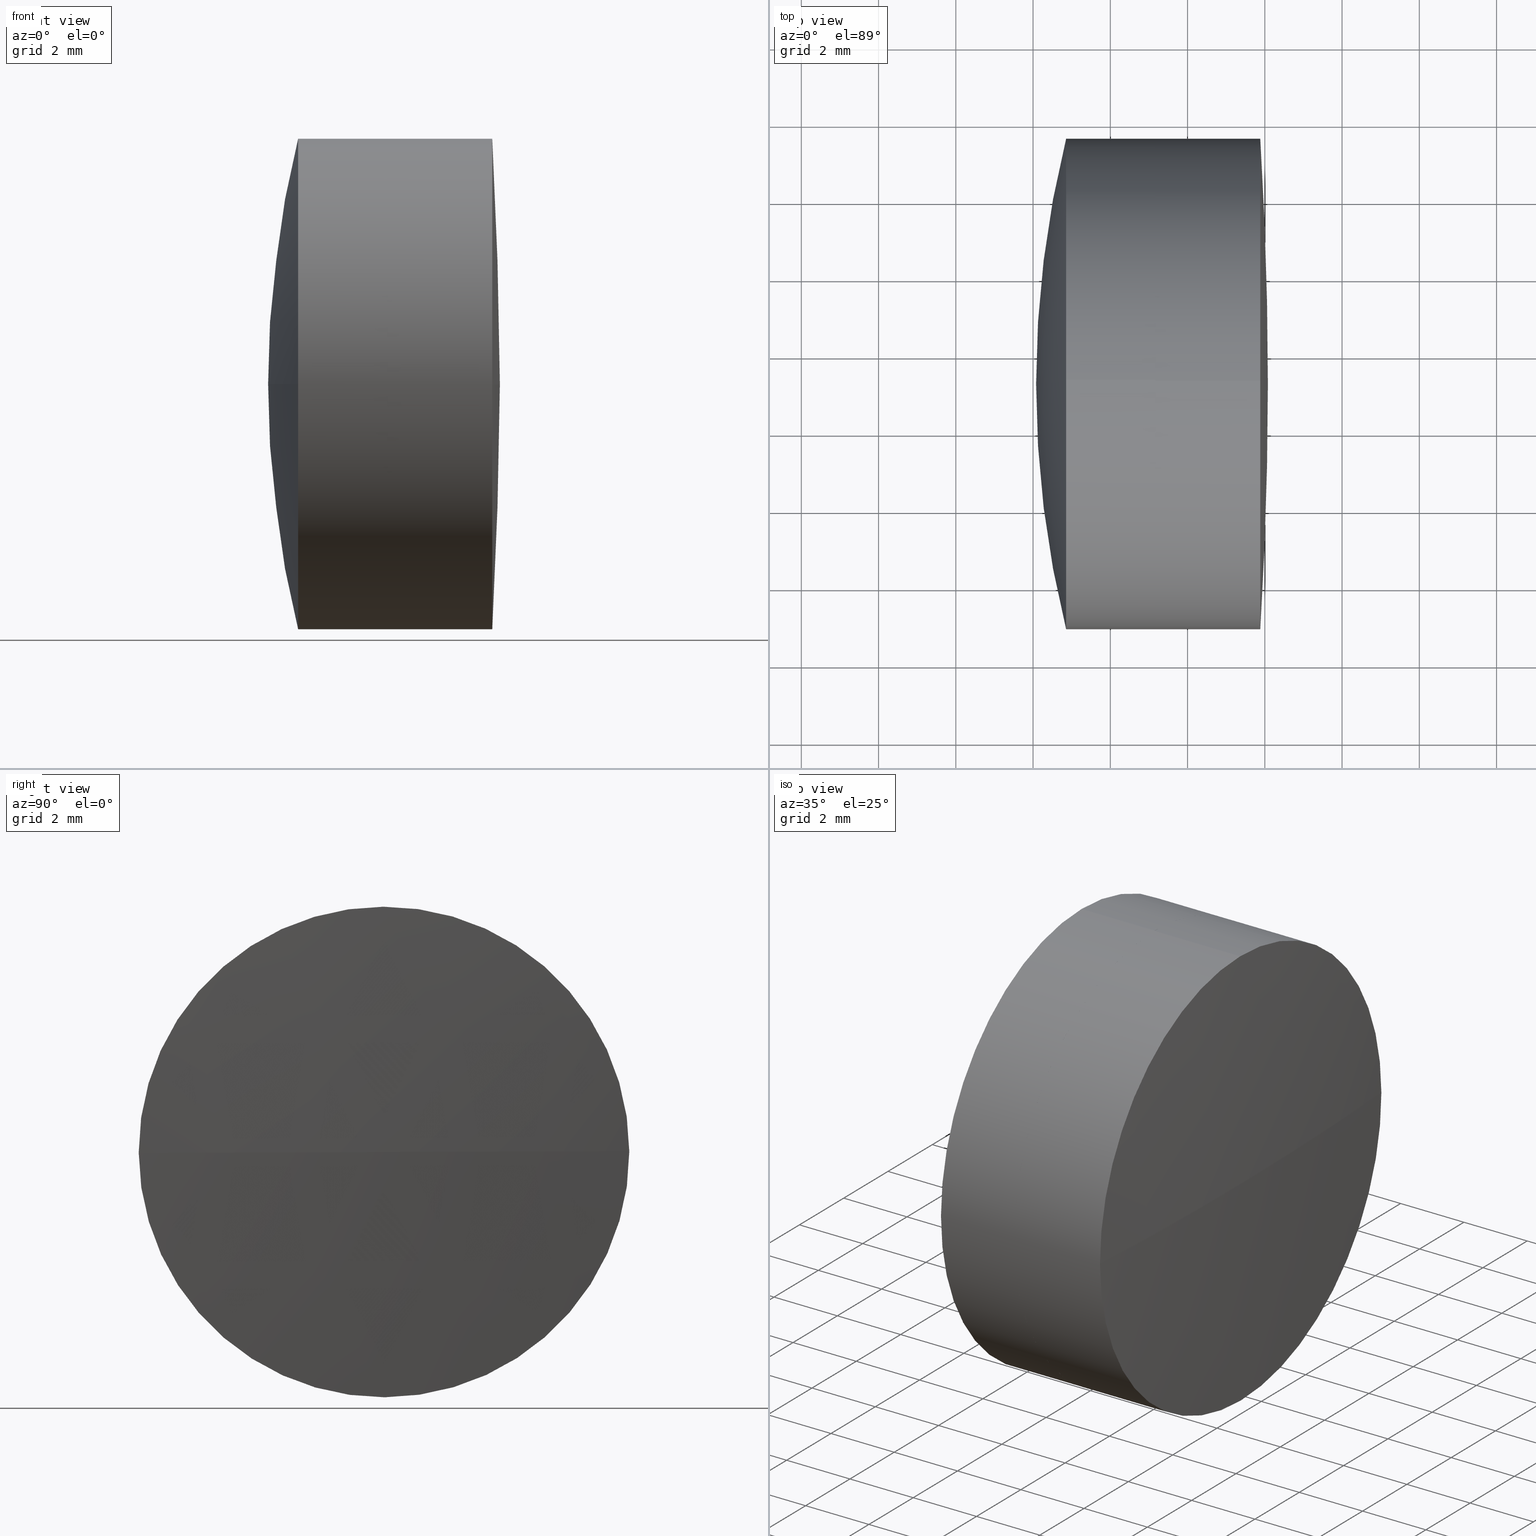
[diagram: canonical four-view strip — front | top / right | iso, engineering-drawing reading convention]
A machine part, canonical four-view strip (front | top / right | iso — engineering-drawing reading convention). The complete STEP part file that produces these views, byte-faithful:
ISO-10303-21;
HEADER;
FILE_DESCRIPTION (( 'STEP AP203' ),
    '1' );
FILE_NAME ('145273.STEP',
    '2024-05-11T03:07:16',
    ( '' ),
    ( '' ),
    'SwSTEP 2.0',
    'SolidWorks 2020',
    '' );
FILE_SCHEMA (( 'CONFIG_CONTROL_DESIGN' ));
ENDSEC;

DATA;
#1 = ADVANCED_FACE ( 'NONE', ( #428 ), #59, .F. ) ;
#2 = DIRECTION ( 'NONE',  ( -1.000000000000000000, -0.000000000000000000, -0.000000000000000000 ) ) ;
#3 = VERTEX_POINT ( 'NONE', #325 ) ;
#4 = DIRECTION ( 'NONE',  ( -1.000000000000000000, -0.000000000000000000, -0.000000000000000000 ) ) ;
#5 = ORIENTED_EDGE ( 'NONE', *, *, #82, .T. ) ;
#6 = CIRCLE ( 'NONE', #426, 6.349999999999997868 ) ;
#7 = ORIENTED_EDGE ( 'NONE', *, *, #126, .T. ) ;
#8 = EDGE_CURVE ( 'NONE', #281, #33, #6, .T. ) ;
#9 = CYLINDRICAL_SURFACE ( 'NONE', #90, 6.349999999999999645 ) ;
#10 = ORIENTED_EDGE ( 'NONE', *, *, #400, .T. ) ;
#11 = DATE_AND_TIME ( #121, #438 ) ;
#12 = EDGE_LOOP ( 'NONE', ( #299, #343, #246, #37, #244, #383 ) ) ;
#13 = AXIS2_PLACEMENT_3D ( 'NONE', #157, #184, #111 ) ;
#14 = PERSON_AND_ORGANIZATION ( #403, #101 ) ;
#15 = DIRECTION ( 'NONE',  ( -1.000000000000000000, -2.232143574251894969E-18, -0.000000000000000000 ) ) ;
#16 = CIRCLE ( 'NONE', #96, 6.349999999999997868 ) ;
#17 = PERSON_AND_ORGANIZATION ( #403, #101 ) ;
#18 = CARTESIAN_POINT ( 'NONE',  ( -42.82922239068432191, 29.23725402614866553, 0.000000000000000000 ) ) ;
#19 = AXIS2_PLACEMENT_3D ( 'NONE', #348, #277, #172 ) ;
#20 = PERSON_AND_ORGANIZATION_ROLE ( 'classification_officer' ) ;
#21 = LOCAL_TIME ( 11, 7, 16.00000000000000000, #85 ) ;
#22 = ORIENTED_EDGE ( 'NONE', *, *, #228, .F. ) ;
#23 = APPROVAL_STATUS ( 'not_yet_approved' ) ;
#24 = CARTESIAN_POINT ( 'NONE',  ( -40.11746922928519155, 29.23725402614866553, 0.000000000000000000 ) ) ;
#25 = AXIS2_PLACEMENT_3D ( 'NONE', #27, #62, #444 ) ;
#26 = EDGE_CURVE ( 'NONE', #3, #435, #308, .T. ) ;
#27 = CARTESIAN_POINT ( 'NONE',  ( -42.82922239068432191, 29.23725402614865843, 0.000000000000000000 ) ) ;
#28 = DIRECTION ( 'NONE',  ( -1.000000000000000000, -2.232143574251894969E-18, -0.000000000000000000 ) ) ;
#29 = CARTESIAN_POINT ( 'NONE',  ( -45.92046947869103235, 29.23725402614865843, -6.349999999999999645 ) ) ;
#30 = FACE_OUTER_BOUND ( 'NONE', #358, .T. ) ;
#31 = DIRECTION ( 'NONE',  ( -1.000000000000000000, -2.232143574251894969E-18, -0.000000000000000000 ) ) ;
#32 = CARTESIAN_POINT ( 'NONE',  ( -42.82922239068432191, 29.23725402614865843, 6.349999999999999645 ) ) ;
#33 = VERTEX_POINT ( 'NONE', #264 ) ;
#34 = EDGE_CURVE ( 'NONE', #156, #33, #159, .T. ) ;
#35 = AXIS2_PLACEMENT_3D ( 'NONE', #18, #295, #432 ) ;
#36 = FACE_OUTER_BOUND ( 'NONE', #12, .T. ) ;
#37 = ORIENTED_EDGE ( 'NONE', *, *, #147, .F. ) ;
#38 = DIRECTION ( 'NONE',  ( 0.000000000000000000, 0.9999928825215749217, 0.003772917464198912579 ) ) ;
#39 = ORIENTED_EDGE ( 'NONE', *, *, #26, .F. ) ;
#40 = APPROVAL_PERSON_ORGANIZATION ( #360, #440, #56 ) ;
#41 = EDGE_CURVE ( 'NONE', #292, #42, #171, .T. ) ;
#42 = VERTEX_POINT ( 'NONE', #152 ) ;
#43 = SPHERICAL_SURFACE ( 'NONE', #253, 22.64000000000000057 ) ;
#44 = AXIS2_PLACEMENT_3D ( 'NONE', #231, #267, #64 ) ;
#45 = EDGE_LOOP ( 'NONE', ( #22, #212, #181, #143 ) ) ;
#46 = MECHANICAL_CONTEXT ( 'NONE', #293, 'mechanical' ) ;
#47 = ORIENTED_EDGE ( 'NONE', *, *, #367, .F. ) ;
#48 = LOCAL_TIME ( 11, 7, 16.00000000000000000, #49 ) ;
#49 = COORDINATED_UNIVERSAL_TIME_OFFSET ( 8, 0, .AHEAD. ) ;
#50 = FACE_OUTER_BOUND ( 'NONE', #74, .T. ) ;
#51 = EDGE_CURVE ( 'NONE', #435, #176, #350, .T. ) ;
#52 = PERSON_AND_ORGANIZATION ( #403, #101 ) ;
#53 = ORIENTED_EDGE ( 'NONE', *, *, #8, .F. ) ;
#54 = PERSON_AND_ORGANIZATION ( #403, #101 ) ;
#55 = CIRCLE ( 'NONE', #146, 6.349999999999999645 ) ;
#56 = APPROVAL_ROLE ( '' ) ;
#57 = DIRECTION ( 'NONE',  ( 0.000000000000000000, -0.003772917464198976330, 0.9999928825215749217 ) ) ;
#58 = EDGE_CURVE ( 'NONE', #33, #347, #262, .T. ) ;
#59 = SPHERICAL_SURFACE ( 'NONE', #365, 22.64000000000000057 ) ;
#60 = AXIS2_PLACEMENT_3D ( 'NONE', #266, #91, #226 ) ;
#61 = CARTESIAN_POINT ( 'NONE',  ( -39.92046947869101814, 29.23725402614866908, 2.366615641800109374E-17 ) ) ;
#62 = DIRECTION ( 'NONE',  ( -1.000000000000000000, -0.000000000000000000, -0.000000000000000000 ) ) ;
#63 = LOCAL_TIME ( 11, 7, 16.00000000000000000, #191 ) ;
#64 = DIRECTION ( 'NONE',  ( 0.000000000000000000, 0.9999928825215749217, 0.003772917464198912579 ) ) ;
#65 = AXIS2_PLACEMENT_3D ( 'NONE', #201, #437, #338 ) ;
#66 = DIRECTION ( 'NONE',  ( 0.000000000000000000, 1.000000000000000000, 0.000000000000000000 ) ) ;
#67 = DIRECTION ( 'NONE',  ( -1.000000000000000000, -0.000000000000000000, -0.000000000000000000 ) ) ;
#68 = EDGE_CURVE ( 'NONE', #386, #209, #236, .T. ) ;
#69 = DIRECTION ( 'NONE',  ( 0.000000000000000000, 0.000000000000000000, 1.000000000000000000 ) ) ;
#70 = AXIS2_PLACEMENT_3D ( 'NONE', #399, #368, #168 ) ;
#71 = CARTESIAN_POINT ( 'NONE',  ( -42.82922239068432191, 35.58720883016066239, 0.02395802589766309401 ) ) ;
#72 = EDGE_CURVE ( 'NONE', #170, #119, #230, .T. ) ;
#73 = SPHERICAL_SURFACE ( 'NONE', #405, 26.33999999999976183 ) ;
#74 = EDGE_LOOP ( 'NONE', ( #375, #278, #5, #287 ) ) ;
#75 = CARTESIAN_POINT ( 'NONE',  ( -19.58046947869131316, 29.23725402614865843, 0.000000000000000000 ) ) ;
#76 = ORIENTED_EDGE ( 'NONE', *, *, #436, .T. ) ;
#77 = SPHERICAL_SURFACE ( 'NONE', #78, 22.64000000000000057 ) ;
#78 = AXIS2_PLACEMENT_3D ( 'NONE', #135, #312, #208 ) ;
#79 = ORIENTED_EDGE ( 'NONE', *, *, #72, .F. ) ;
#80 = CALENDAR_DATE ( 2024, 11, 5 ) ;
#81 = LINE ( 'NONE', #237, #393 ) ;
#82 = EDGE_CURVE ( 'NONE', #136, #261, #177, .T. ) ;
#83 = DESIGN_CONTEXT ( 'detailed design', #315, 'design' ) ;
#84 = PRODUCT_RELATED_PRODUCT_CATEGORY ( 'detail', '', ( #221 ) ) ;
#85 = COORDINATED_UNIVERSAL_TIME_OFFSET ( 8, 0, .AHEAD. ) ;
#86 = DIRECTION ( 'NONE',  ( 0.000000000000000000, 0.9999928825215749217, 0.003772917464198913013 ) ) ;
#87 = ORIENTED_EDGE ( 'NONE', *, *, #313, .T. ) ;
#88 = ADVANCED_FACE ( 'NONE', ( #50 ), #150, .F. ) ;
#89 = DIRECTION ( 'NONE',  ( 0.000000000000000000, -0.9999928825215750328, -0.003772917464198913447 ) ) ;
#90 = AXIS2_PLACEMENT_3D ( 'NONE', #416, #139, #384 ) ;
#91 = DIRECTION ( 'NONE',  ( -1.000000000000000000, -0.000000000000000000, -0.000000000000000000 ) ) ;
#92 = AXIS2_PLACEMENT_3D ( 'NONE', #361, #188, #356 ) ;
#93 = DIRECTION ( 'NONE',  ( 0.000000000000000000, -0.9999928825215750328, -0.003772917464198914314 ) ) ;
#94 = CARTESIAN_POINT ( 'NONE',  ( -40.11746922928519155, 29.21329600025099893, 6.349954804012000409 ) ) ;
#95 = CARTESIAN_POINT ( 'NONE',  ( -64.56046947869103292, 29.23725402614866553, 0.000000000000000000 ) ) ;
#96 = AXIS2_PLACEMENT_3D ( 'NONE', #272, #402, #305 ) ;
#97 = CC_DESIGN_PERSON_AND_ORGANIZATION_ASSIGNMENT ( #180, #220, ( #154 ) ) ;
#98 = SPHERICAL_SURFACE ( 'NONE', #377, 26.33999999999976183 ) ;
#99 = CARTESIAN_POINT ( 'NONE',  ( -42.82922239068432191, 29.23725402614865843, 0.000000000000000000 ) ) ;
#100 = EDGE_LOOP ( 'NONE', ( #352, #390, #110, #173 ) ) ;
#101 = ORGANIZATION ( 'δָ��', 'δָ��', '' ) ;
#102 = CARTESIAN_POINT ( 'NONE',  ( -64.56046947869103292, 29.23725402614865843, 0.000000000000000000 ) ) ;
#103 = ORIENTED_EDGE ( 'NONE', *, *, #265, .T. ) ;
#104 = SPHERICAL_SURFACE ( 'NONE', #381, 102.4399999999999977 ) ;
#105 = ORIENTED_EDGE ( 'NONE', *, *, #8, .T. ) ;
#106 = DIRECTION ( 'NONE',  ( -8.421693473894630932E-21, 0.003772917464199035745, -0.9999928825215750328 ) ) ;
#107 = ORIENTED_EDGE ( 'NONE', *, *, #34, .F. ) ;
#108 = CIRCLE ( 'NONE', #167, 26.33999999999976183 ) ;
#109 = DIRECTION ( 'NONE',  ( 0.000000000000000000, 0.000000000000000000, 1.000000000000000000 ) ) ;
#110 = ORIENTED_EDGE ( 'NONE', *, *, #41, .T. ) ;
#111 = DIRECTION ( 'NONE',  ( 0.000000000000000000, -0.003772917464198976330, 0.9999928825215749217 ) ) ;
#112 = EDGE_CURVE ( 'NONE', #261, #292, #185, .T. ) ;
#113 = ORIENTED_EDGE ( 'NONE', *, *, #58, .F. ) ;
#114 = ORIENTED_EDGE ( 'NONE', *, *, #215, .F. ) ;
#115 = APPROVAL_PERSON_ORGANIZATION ( #52, #282, #396 ) ;
#116 = MANIFOLD_SOLID_BREP ( '145273b-1-solid1', #273 ) ;
#117 = VERTEX_POINT ( 'NONE', #439 ) ;
#118 = ADVANCED_FACE ( 'NONE', ( #369 ), #366, .T. ) ;
#119 = VERTEX_POINT ( 'NONE', #130 ) ;
#120 = CIRCLE ( 'NONE', #370, 6.349999999999999645 ) ;
#121 = CALENDAR_DATE ( 2024, 11, 5 ) ;
#122 = ORIENTED_EDGE ( 'NONE', *, *, #242, .T. ) ;
#123 = DATE_AND_TIME ( #163, #63 ) ;
#124 = CARTESIAN_POINT ( 'NONE',  ( -41.92046947869102524, 29.23725402614866553, 5.230396147047489100E-18 ) ) ;
#125 = DIRECTION ( 'NONE',  ( -0.000000000000000000, 0.000000000000000000, -1.000000000000000000 ) ) ;
#126 = EDGE_CURVE ( 'NONE', #423, #176, #164, .T. ) ;
#127 = AXIS2_PLACEMENT_3D ( 'NONE', #158, #288, #425 ) ;
#128 = DIRECTION ( 'NONE',  ( 0.000000000000000000, 1.224646799147353207E-16, -1.000000000000000000 ) ) ;
#129 = CIRCLE ( 'NONE', #249, 102.4400000000000261 ) ;
#130 = CARTESIAN_POINT ( 'NONE',  ( -42.82922239068432191, 22.88725402614865700, -7.776507174585690191E-16 ) ) ;
#131 = CC_DESIGN_DATE_AND_TIME_ASSIGNMENT ( #182, #189, ( #137 ) ) ;
#132 = CARTESIAN_POINT ( 'NONE',  ( -42.82922239068432191, 35.58725402614864919, 0.000000000000000000 ) ) ;
#133 = CIRCLE ( 'NONE', #336, 26.33999999999976538 ) ;
#134 = CARTESIAN_POINT ( 'NONE',  ( -40.11746922928519155, 29.26121205204632858, -6.349954804012000409 ) ) ;
#135 = CARTESIAN_POINT ( 'NONE',  ( -64.56046947869103292, 29.23725402614865843, 0.000000000000000000 ) ) ;
#136 = VERTEX_POINT ( 'NONE', #271 ) ;
#137 = SECURITY_CLASSIFICATION ( '', '', #354 ) ;
#138 = ADVANCED_BREP_SHAPE_REPRESENTATION ( '145273', ( #280, #116, #233 ), #429 ) ;
#139 = DIRECTION ( 'NONE',  ( -1.000000000000000000, -0.000000000000000000, -0.000000000000000000 ) ) ;
#140 = ORIENTED_EDGE ( 'NONE', *, *, #72, .T. ) ;
#141 = CIRCLE ( 'NONE', #65, 22.64000000000000057 ) ;
#142 = CARTESIAN_POINT ( 'NONE',  ( -142.3604694786910159, 29.23725402614866553, 0.000000000000000000 ) ) ;
#143 = ORIENTED_EDGE ( 'NONE', *, *, #265, .F. ) ;
#144 = FACE_OUTER_BOUND ( 'NONE', #205, .T. ) ;
#145 = EDGE_LOOP ( 'NONE', ( #107, #314, #317, #113 ) ) ;
#146 = AXIS2_PLACEMENT_3D ( 'NONE', #99, #2, #413 ) ;
#147 = EDGE_CURVE ( 'NONE', #176, #117, #193, .T. ) ;
#148 = DIRECTION ( 'NONE',  ( -1.000000000000000000, -0.000000000000000000, -0.000000000000000000 ) ) ;
#149 = VECTOR ( 'NONE', #333, 1000.000000000000000 ) ;
#150 = SPHERICAL_SURFACE ( 'NONE', #200, 22.64000000000000057 ) ;
#151 = APPLICATION_PROTOCOL_DEFINITION ( 'international standard', 'config_control_design', 1994, #315 ) ;
#152 = CARTESIAN_POINT ( 'NONE',  ( -42.82922239068432191, 29.26121205204632858, -6.349954804012000409 ) ) ;
#153 = EDGE_CURVE ( 'NONE', #42, #136, #16, .T. ) ;
#154 = PRODUCT_DEFINITION_FORMATION_WITH_SPECIFIED_SOURCE ( '�κ�', '', #221, .NOT_KNOWN. ) ;
#155 = CALENDAR_DATE ( 2024, 11, 5 ) ;
#156 = VERTEX_POINT ( 'NONE', #61 ) ;
#157 = CARTESIAN_POINT ( 'NONE',  ( -40.11746922928519155, 29.23725402614866553, 0.000000000000000000 ) ) ;
#158 = CARTESIAN_POINT ( 'NONE',  ( -64.56046947869103292, 29.23725402614865843, 0.000000000000000000 ) ) ;
#159 = CIRCLE ( 'NONE', #401, 102.4399999999999977 ) ;
#160 = CARTESIAN_POINT ( 'NONE',  ( -19.58046947869131316, 29.23725402614865843, 0.000000000000000000 ) ) ;
#161 = CC_DESIGN_APPROVAL ( #440, ( #247 ) ) ;
#162 = EDGE_CURVE ( 'NONE', #222, #292, #269, .T. ) ;
#163 = CALENDAR_DATE ( 2024, 11, 5 ) ;
#164 = LINE ( 'NONE', #304, #149 ) ;
#165 = CARTESIAN_POINT ( 'NONE',  ( -45.14358939782461988, 29.23725402614865843, 6.349999999999999645 ) ) ;
#166 = CC_DESIGN_PERSON_AND_ORGANIZATION_ASSIGNMENT ( #17, #351, ( #154 ) ) ;
#167 = AXIS2_PLACEMENT_3D ( 'NONE', #75, #310, #214 ) ;
#168 = DIRECTION ( 'NONE',  ( 0.000000000000000000, 0.000000000000000000, 1.000000000000000000 ) ) ;
#169 = CYLINDRICAL_SURFACE ( 'NONE', #19, 6.349999999999997868 ) ;
#170 = VERTEX_POINT ( 'NONE', #199 ) ;
#171 = CIRCLE ( 'NONE', #35, 6.349999999999997868 ) ;
#172 = DIRECTION ( 'NONE',  ( 0.000000000000000000, -0.003772917464198976330, 0.9999928825215749217 ) ) ;
#173 = ORIENTED_EDGE ( 'NONE', *, *, #153, .T. ) ;
#174 = DIRECTION ( 'NONE',  ( 0.000000000000000000, -0.003772917464198976330, 0.9999928825215749217 ) ) ;
#175 = LINE ( 'NONE', #283, #420 ) ;
#176 = VERTEX_POINT ( 'NONE', #165 ) ;
#177 = CIRCLE ( 'NONE', #342, 6.349999999999997868 ) ;
#178 = ORIENTED_EDGE ( 'NONE', *, *, #385, .F. ) ;
#179 = CC_DESIGN_PERSON_AND_ORGANIZATION_ASSIGNMENT ( #54, #187, ( #247 ) ) ;
#180 = PERSON_AND_ORGANIZATION ( #403, #101 ) ;
#181 = ORIENTED_EDGE ( 'NONE', *, *, #194, .F. ) ;
#182 = DATE_AND_TIME ( #155, #48 ) ;
#183 = UNCERTAINTY_MEASURE_WITH_UNIT (LENGTH_MEASURE( 1.000000000000000082E-05 ), #434, 'distance_accuracy_value', 'NONE');
#184 = DIRECTION ( 'NONE',  ( -1.000000000000000000, -2.232143574251894969E-18, -0.000000000000000000 ) ) ;
#185 = CIRCLE ( 'NONE', #297, 6.349999999999997868 ) ;
#186 = ORIENTED_EDGE ( 'NONE', *, *, #274, .F. ) ;
#187 = PERSON_AND_ORGANIZATION_ROLE ( 'creator' ) ;
#188 = DIRECTION ( 'NONE',  ( -1.000000000000000000, -0.000000000000000000, -0.000000000000000000 ) ) ;
#189 = DATE_TIME_ROLE ( 'classification_date' ) ;
#190 = EDGE_LOOP ( 'NONE', ( #87, #250, #216, #319 ) ) ;
#191 = COORDINATED_UNIVERSAL_TIME_OFFSET ( 8, 0, .AHEAD. ) ;
#192 = DIRECTION ( 'NONE',  ( 0.000000000000000000, -0.003772917464198976330, 0.9999928825215749217 ) ) ;
#193 = CIRCLE ( 'NONE', #70, 6.349999999999999645 ) ;
#194 = EDGE_CURVE ( 'NONE', #423, #209, #323, .T. ) ;
#195 = CARTESIAN_POINT ( 'NONE',  ( -64.56046947869103292, 29.23725402614866553, 0.000000000000000000 ) ) ;
#196 = APPROVAL_DATE_TIME ( #123, #421 ) ;
#197 = DIRECTION ( 'NONE',  ( 0.000000000000000000, -0.003772917464198976330, 0.9999928825215749217 ) ) ;
#198 = CC_DESIGN_PERSON_AND_ORGANIZATION_ASSIGNMENT ( #14, #362, ( #221 ) ) ;
#199 = CARTESIAN_POINT ( 'NONE',  ( -42.82922239068432191, 29.23725402614865843, -6.349999999999999645 ) ) ;
#200 = AXIS2_PLACEMENT_3D ( 'NONE', #95, #203, #235 ) ;
#201 = CARTESIAN_POINT ( 'NONE',  ( -64.56046947869103292, 29.23725402614865843, 0.000000000000000000 ) ) ;
#202 = AXIS2_PLACEMENT_3D ( 'NONE', #210, #344, #174 ) ;
#203 = DIRECTION ( 'NONE',  ( -8.421693473894358594E-21, 0.003772917464198913013, -0.9999928825215749217 ) ) ;
#204 = DIRECTION ( 'NONE',  ( -8.421693473894357089E-21, 0.003772917464198912579, -0.9999928825215749217 ) ) ;
#205 = EDGE_LOOP ( 'NONE', ( #186, #140, #103, #7, #378, #39 ) ) ;
#206 = AXIS2_PLACEMENT_3D ( 'NONE', #225, #363, #57 ) ;
#207 = ADVANCED_FACE ( 'NONE', ( #337 ), #98, .T. ) ;
#208 = DIRECTION ( 'NONE',  ( 0.000000000000000000, 1.000000000000000000, 0.000000000000000000 ) ) ;
#209 = VERTEX_POINT ( 'NONE', #132 ) ;
#210 = CARTESIAN_POINT ( 'NONE',  ( -40.11746922928519155, 29.23725402614866553, 0.000000000000000000 ) ) ;
#211 = CIRCLE ( 'NONE', #443, 22.63999999999999702 ) ;
#212 = ORIENTED_EDGE ( 'NONE', *, *, #68, .T. ) ;
#213 = CC_DESIGN_SECURITY_CLASSIFICATION ( #137, ( #154 ) ) ;
#214 = DIRECTION ( 'NONE',  ( 1.000000000000000000, 0.000000000000000000, 0.000000000000000000 ) ) ;
#215 = EDGE_CURVE ( 'NONE', #435, #419, #133, .T. ) ;
#216 = ORIENTED_EDGE ( 'NONE', *, *, #215, .T. ) ;
#217 = AXIS2_PLACEMENT_3D ( 'NONE', #195, #268, #93 ) ;
#218 = APPLICATION_PROTOCOL_DEFINITION ( 'international standard', 'config_control_design', 1994, #293 ) ;
#219 = ORIENTED_EDGE ( 'NONE', *, *, #68, .F. ) ;
#220 = PERSON_AND_ORGANIZATION_ROLE ( 'design_supplier' ) ;
#221 = PRODUCT ( '145273', '145273', '', ( #46 ) ) ;
#222 = VERTEX_POINT ( 'NONE', #124 ) ;
#223 = DATE_AND_TIME ( #324, #21 ) ;
#224 = ORIENTED_EDGE ( 'NONE', *, *, #34, .T. ) ;
#225 = CARTESIAN_POINT ( 'NONE',  ( -40.11746922928519155, 29.23725402614866553, 0.000000000000000000 ) ) ;
#226 = DIRECTION ( 'NONE',  ( 0.000000000000000000, 0.000000000000000000, 1.000000000000000000 ) ) ;
#227 = CARTESIAN_POINT ( 'NONE',  ( -142.3604694786910159, 29.23725402614866553, 0.000000000000000000 ) ) ;
#228 = EDGE_CURVE ( 'NONE', #386, #119, #141, .T. ) ;
#229 = FACE_OUTER_BOUND ( 'NONE', #349, .T. ) ;
#230 = CIRCLE ( 'NONE', #92, 6.349999999999999645 ) ;
#231 = CARTESIAN_POINT ( 'NONE',  ( -142.3604694786910159, 29.23725402614866553, 0.000000000000000000 ) ) ;
#232 = ADVANCED_FACE ( 'NONE', ( #229 ), #404, .T. ) ;
#233 = AXIS2_PLACEMENT_3D ( 'NONE', #256, #254, #263 ) ;
#234 = CARTESIAN_POINT ( 'NONE',  ( -40.11746922928519865, 22.88729922213665091, -0.02395802589766392668 ) ) ;
#235 = DIRECTION ( 'NONE',  ( 0.000000000000000000, 0.9999928825215749217, 0.003772917464198913013 ) ) ;
#236 = CIRCLE ( 'NONE', #127, 22.64000000000000057 ) ;
#237 = CARTESIAN_POINT ( 'NONE',  ( -41.92046947869102524, 29.21329600025099893, 6.349954804011998633 ) ) ;
#238 = CIRCLE ( 'NONE', #13, 6.349999999999997868 ) ;
#239 = LOCAL_TIME ( 11, 7, 16.00000000000000000, #394 ) ;
#240 = FACE_OUTER_BOUND ( 'NONE', #331, .T. ) ;
#241 = EDGE_LOOP ( 'NONE', ( #447, #252, #320, #311, #380, #105 ) ) ;
#242 = EDGE_CURVE ( 'NONE', #281, #261, #81, .T. ) ;
#243 = DIRECTION ( 'NONE',  ( 0.000000000000000000, 1.000000000000000000, 0.000000000000000000 ) ) ;
#244 = ORIENTED_EDGE ( 'NONE', *, *, #126, .F. ) ;
#245 = DIRECTION ( 'NONE',  ( -0.000000000000000000, 0.000000000000000000, -1.000000000000000000 ) ) ;
#246 = ORIENTED_EDGE ( 'NONE', *, *, #313, .F. ) ;
#247 = PRODUCT_DEFINITION ( 'δ֪', '', #154, #83 ) ;
#248 = CARTESIAN_POINT ( 'NONE',  ( -41.92046947869102524, 29.23725402614865843, 0.000000000000000000 ) ) ;
#249 = AXIS2_PLACEMENT_3D ( 'NONE', #279, #106, #307 ) ;
#250 = ORIENTED_EDGE ( 'NONE', *, *, #26, .T. ) ;
#251 = DIRECTION ( 'NONE',  ( 0.000000000000000000, 0.9999928825215749217, 0.003772917464199036178 ) ) ;
#252 = ORIENTED_EDGE ( 'NONE', *, *, #371, .T. ) ;
#253 = AXIS2_PLACEMENT_3D ( 'NONE', #102, #245, #411 ) ;
#254 = DIRECTION ( 'NONE',  ( 0.000000000000000000, 0.000000000000000000, 1.000000000000000000 ) ) ;
#255 = CARTESIAN_POINT ( 'NONE',  ( -42.82922239068432191, 29.23725402614866553, 0.000000000000000000 ) ) ;
#256 = CARTESIAN_POINT ( 'NONE',  ( 0.000000000000000000, 0.000000000000000000, 0.000000000000000000 ) ) ;
#257 = AXIS2_PLACEMENT_3D ( 'NONE', #422, #4, #109 ) ;
#258 = PRODUCT_DEFINITION_SHAPE ( 'NONE', 'NONE',  #247 ) ;
#259 = ORIENTED_EDGE ( 'NONE', *, *, #371, .F. ) ;
#260 =( NAMED_UNIT ( * ) SI_UNIT ( $, .STERADIAN. ) SOLID_ANGLE_UNIT ( ) );
#261 = VERTEX_POINT ( 'NONE', #373 ) ;
#262 = CIRCLE ( 'NONE', #206, 6.349999999999997868 ) ;
#263 = DIRECTION ( 'NONE',  ( 1.000000000000000000, 0.000000000000000000, 0.000000000000000000 ) ) ;
#264 = CARTESIAN_POINT ( 'NONE',  ( -40.11746922928519865, 35.58720883016067660, 0.02395802589766314605 ) ) ;
#265 = EDGE_CURVE ( 'NONE', #119, #423, #120, .T. ) ;
#266 = CARTESIAN_POINT ( 'NONE',  ( -45.14358939782461988, 29.23725402614865843, 0.000000000000000000 ) ) ;
#267 = DIRECTION ( 'NONE',  ( -8.421693473894357089E-21, 0.003772917464198912579, -0.9999928825215749217 ) ) ;
#268 = DIRECTION ( 'NONE',  ( 8.421693473894358594E-21, -0.003772917464198913447, 0.9999928825215750328 ) ) ;
#269 = CIRCLE ( 'NONE', #217, 22.63999999999999702 ) ;
#270 = CARTESIAN_POINT ( 'NONE',  ( -41.92046947869102524, 29.23725402614866553, 0.000000000000000000 ) ) ;
#271 = CARTESIAN_POINT ( 'NONE',  ( -42.82922239068432191, 22.88729922213666157, -0.02395802589766386423 ) ) ;
#272 = CARTESIAN_POINT ( 'NONE',  ( -42.82922239068432191, 29.23725402614866553, 0.000000000000000000 ) ) ;
#273 = CLOSED_SHELL ( 'NONE', ( #321, #353, #88, #1, #118, #232 ) ) ;
#274 = EDGE_CURVE ( 'NONE', #170, #3, #302, .T. ) ;
#275 = DIRECTION ( 'NONE',  ( -1.000000000000000000, -0.000000000000000000, -0.000000000000000000 ) ) ;
#276 = ORIENTED_EDGE ( 'NONE', *, *, #147, .T. ) ;
#277 = DIRECTION ( 'NONE',  ( -1.000000000000000000, -2.232143574251894969E-18, -0.000000000000000000 ) ) ;
#278 = ORIENTED_EDGE ( 'NONE', *, *, #339, .T. ) ;
#279 = CARTESIAN_POINT ( 'NONE',  ( -142.3604694786910159, 29.23725402614866553, 0.000000000000000000 ) ) ;
#280 = MANIFOLD_SOLID_BREP ( '145273a-1-solid1', #387 ) ;
#281 = VERTEX_POINT ( 'NONE', #94 ) ;
#282 = APPROVAL ( #388, 'δָ��' ) ;
#283 = CARTESIAN_POINT ( 'NONE',  ( -41.92046947869102524, 29.26121205204632858, -6.349954804011998633 ) ) ;
#284 = VERTEX_POINT ( 'NONE', #234 ) ;
#285 = CYLINDRICAL_SURFACE ( 'NONE', #257, 6.349999999999999645 ) ;
#286 = AXIS2_PLACEMENT_3D ( 'NONE', #346, #275, #69 ) ;
#287 = ORIENTED_EDGE ( 'NONE', *, *, #112, .T. ) ;
#288 = DIRECTION ( 'NONE',  ( -0.000000000000000000, 0.000000000000000000, 1.000000000000000000 ) ) ;
#289 = ADVANCED_FACE ( 'NONE', ( #30 ), #43, .T. ) ;
#290 = DIRECTION ( 'NONE',  ( -8.421693473894358594E-21, 0.003772917464198913013, -0.9999928825215749217 ) ) ;
#291 = PERSON_AND_ORGANIZATION ( #403, #101 ) ;
#292 = VERTEX_POINT ( 'NONE', #71 ) ;
#293 = APPLICATION_CONTEXT ( 'configuration controlled 3d designs of mechanical parts and assemblies' ) ;
#294 = APPROVAL_DATE_TIME ( #11, #440 ) ;
#295 = DIRECTION ( 'NONE',  ( -1.000000000000000000, -2.232143574251894969E-18, -0.000000000000000000 ) ) ;
#296 = CC_DESIGN_PERSON_AND_ORGANIZATION_ASSIGNMENT ( #291, #20, ( #137 ) ) ;
#297 = AXIS2_PLACEMENT_3D ( 'NONE', #322, #31, #442 ) ;
#298 = APPROVAL_ROLE ( '' ) ;
#299 = ORIENTED_EDGE ( 'NONE', *, *, #329, .T. ) ;
#300 = DIRECTION ( 'NONE',  ( 0.000000000000000000, 1.000000000000000000, 1.224646799147353207E-16 ) ) ;
#301 = APPROVAL_PERSON_ORGANIZATION ( #330, #421, #298 ) ;
#302 = LINE ( 'NONE', #29, #433 ) ;
#303 = DIRECTION ( 'NONE',  ( -1.000000000000000000, -0.000000000000000000, -0.000000000000000000 ) ) ;
#304 = CARTESIAN_POINT ( 'NONE',  ( -45.92046947869103235, 29.23725402614865843, 6.349999999999999645 ) ) ;
#305 = DIRECTION ( 'NONE',  ( 0.000000000000000000, -0.003772917464198976330, 0.9999928825215749217 ) ) ;
#306 = ADVANCED_FACE ( 'NONE', ( #379 ), #77, .T. ) ;
#307 = DIRECTION ( 'NONE',  ( 0.000000000000000000, 0.9999928825215750328, 0.003772917464199034877 ) ) ;
#308 = CIRCLE ( 'NONE', #60, 6.349999999999999645 ) ;
#309 = ORIENTED_EDGE ( 'NONE', *, *, #228, .T. ) ;
#310 = DIRECTION ( 'NONE',  ( -0.000000000000000000, 0.000000000000000000, 1.000000000000000000 ) ) ;
#311 = ORIENTED_EDGE ( 'NONE', *, *, #112, .F. ) ;
#312 = DIRECTION ( 'NONE',  ( -0.000000000000000000, 0.000000000000000000, -1.000000000000000000 ) ) ;
#313 = EDGE_CURVE ( 'NONE', #117, #3, #397, .T. ) ;
#314 = ORIENTED_EDGE ( 'NONE', *, *, #385, .T. ) ;
#315 = APPLICATION_CONTEXT ( 'configuration controlled 3d designs of mechanical parts and assemblies' ) ;
#316 = FACE_OUTER_BOUND ( 'NONE', #241, .T. ) ;
#317 = ORIENTED_EDGE ( 'NONE', *, *, #436, .F. ) ;
#318 = DIRECTION ( 'NONE',  ( -8.421693473894630932E-21, 0.003772917464199035745, -0.9999928825215750328 ) ) ;
#319 = ORIENTED_EDGE ( 'NONE', *, *, #400, .F. ) ;
#320 = ORIENTED_EDGE ( 'NONE', *, *, #41, .F. ) ;
#321 = ADVANCED_FACE ( 'NONE', ( #316 ), #169, .T. ) ;
#322 = CARTESIAN_POINT ( 'NONE',  ( -42.82922239068432191, 29.23725402614866553, 0.000000000000000000 ) ) ;
#323 = CIRCLE ( 'NONE', #25, 6.349999999999999645 ) ;
#324 = CALENDAR_DATE ( 2024, 11, 5 ) ;
#325 = CARTESIAN_POINT ( 'NONE',  ( -45.14358939782461988, 29.23725402614865843, -6.349999999999999645 ) ) ;
#326 = DATE_AND_TIME ( #80, #239 ) ;
#327 = CIRCLE ( 'NONE', #202, 6.349999999999997868 ) ;
#328 = DIRECTION ( 'NONE',  ( 0.000000000000000000, -0.003772917464198976330, 0.9999928825215749217 ) ) ;
#329 = EDGE_CURVE ( 'NONE', #209, #170, #55, .T. ) ;
#330 = PERSON_AND_ORGANIZATION ( #403, #101 ) ;
#331 = EDGE_LOOP ( 'NONE', ( #114, #345, #276, #10 ) ) ;
#332 = DIRECTION ( 'NONE',  ( 8.421693473894358594E-21, -0.003772917464198913447, 0.9999928825215750328 ) ) ;
#333 = DIRECTION ( 'NONE',  ( -1.000000000000000000, -0.000000000000000000, -0.000000000000000000 ) ) ;
#334 = ADVANCED_FACE ( 'NONE', ( #240 ), #73, .T. ) ;
#335 = DIRECTION ( 'NONE',  ( 0.000000000000000000, 0.000000000000000000, 1.000000000000000000 ) ) ;
#336 = AXIS2_PLACEMENT_3D ( 'NONE', #160, #128, #300 ) ;
#337 = FACE_OUTER_BOUND ( 'NONE', #190, .T. ) ;
#338 = DIRECTION ( 'NONE',  ( 0.000000000000000000, 1.000000000000000000, 1.224646799147353207E-16 ) ) ;
#339 = EDGE_CURVE ( 'NONE', #222, #136, #211, .T. ) ;
#340 = CARTESIAN_POINT ( 'NONE',  ( -45.92046947869107498, 29.23725402614865843, 0.000000000000000000 ) ) ;
#341 = DIRECTION ( 'NONE',  ( -1.000000000000000000, -2.232143574251894969E-18, -0.000000000000000000 ) ) ;
#342 = AXIS2_PLACEMENT_3D ( 'NONE', #255, #15, #328 ) ;
#343 = ORIENTED_EDGE ( 'NONE', *, *, #274, .T. ) ;
#344 = DIRECTION ( 'NONE',  ( -1.000000000000000000, -2.232143574251894969E-18, -0.000000000000000000 ) ) ;
#345 = ORIENTED_EDGE ( 'NONE', *, *, #51, .T. ) ;
#346 = CARTESIAN_POINT ( 'NONE',  ( -45.14358939782461988, 29.23725402614865843, 0.000000000000000000 ) ) ;
#347 = VERTEX_POINT ( 'NONE', #134 ) ;
#348 = CARTESIAN_POINT ( 'NONE',  ( -41.92046947869102524, 29.23725402614866553, 0.000000000000000000 ) ) ;
#349 = EDGE_LOOP ( 'NONE', ( #259, #76, #412, #122, #389, #417 ) ) ;
#350 = CIRCLE ( 'NONE', #409, 6.349999999999999645 ) ;
#351 = PERSON_AND_ORGANIZATION_ROLE ( 'creator' ) ;
#352 = ORIENTED_EDGE ( 'NONE', *, *, #339, .F. ) ;
#353 = ADVANCED_FACE ( 'NONE', ( #418 ), #104, .T. ) ;
#354 = SECURITY_CLASSIFICATION_LEVEL ( 'unclassified' ) ;
#355 = CC_DESIGN_APPROVAL ( #421, ( #137 ) ) ;
#356 = DIRECTION ( 'NONE',  ( 0.000000000000000000, 0.000000000000000000, 1.000000000000000000 ) ) ;
#357 = APPROVAL_DATE_TIME ( #223, #282 ) ;
#358 = EDGE_LOOP ( 'NONE', ( #219, #309, #79, #364 ) ) ;
#359 = CC_DESIGN_DATE_AND_TIME_ASSIGNMENT ( #326, #424, ( #247 ) ) ;
#360 = PERSON_AND_ORGANIZATION ( #403, #101 ) ;
#361 = CARTESIAN_POINT ( 'NONE',  ( -42.82922239068432191, 29.23725402614865843, 0.000000000000000000 ) ) ;
#362 = PERSON_AND_ORGANIZATION_ROLE ( 'design_owner' ) ;
#363 = DIRECTION ( 'NONE',  ( -1.000000000000000000, -2.232143574251894969E-18, -0.000000000000000000 ) ) ;
#364 = ORIENTED_EDGE ( 'NONE', *, *, #329, .F. ) ;
#365 = AXIS2_PLACEMENT_3D ( 'NONE', #395, #290, #86 ) ;
#366 = SPHERICAL_SURFACE ( 'NONE', #44, 102.4399999999999977 ) ;
#367 = EDGE_CURVE ( 'NONE', #284, #281, #327, .T. ) ;
#368 = DIRECTION ( 'NONE',  ( -1.000000000000000000, -0.000000000000000000, -0.000000000000000000 ) ) ;
#369 = FACE_OUTER_BOUND ( 'NONE', #414, .T. ) ;
#370 = AXIS2_PLACEMENT_3D ( 'NONE', #408, #67, #335 ) ;
#371 = EDGE_CURVE ( 'NONE', #347, #42, #175, .T. ) ;
#372 = CARTESIAN_POINT ( 'NONE',  ( -19.58046947869131316, 29.23725402614865843, 0.000000000000000000 ) ) ;
#373 = CARTESIAN_POINT ( 'NONE',  ( -42.82922239068432191, 29.21329600025099893, 6.349954804012000409 ) ) ;
#374 = DIRECTION ( 'NONE',  ( -0.000000000000000000, 0.000000000000000000, -1.000000000000000000 ) ) ;
#375 = ORIENTED_EDGE ( 'NONE', *, *, #162, .F. ) ;
#376 = CARTESIAN_POINT ( 'NONE',  ( -64.56046947869103292, 29.23725402614866553, 0.000000000000000000 ) ) ;
#377 = AXIS2_PLACEMENT_3D ( 'NONE', #372, #125, #66 ) ;
#378 = ORIENTED_EDGE ( 'NONE', *, *, #51, .F. ) ;
#379 = FACE_OUTER_BOUND ( 'NONE', #45, .T. ) ;
#380 = ORIENTED_EDGE ( 'NONE', *, *, #242, .F. ) ;
#381 = AXIS2_PLACEMENT_3D ( 'NONE', #142, #204, #38 ) ;
#382 = CARTESIAN_POINT ( 'NONE',  ( -19.58046947869131316, 29.23725402614865843, 0.000000000000000000 ) ) ;
#383 = ORIENTED_EDGE ( 'NONE', *, *, #194, .T. ) ;
#384 = DIRECTION ( 'NONE',  ( 0.000000000000000000, 0.000000000000000000, 1.000000000000000000 ) ) ;
#385 = EDGE_CURVE ( 'NONE', #156, #284, #129, .T. ) ;
#386 = VERTEX_POINT ( 'NONE', #248 ) ;
#387 = CLOSED_SHELL ( 'NONE', ( #407, #289, #207, #334, #306, #415 ) ) ;
#388 = APPROVAL_STATUS ( 'not_yet_approved' ) ;
#389 = ORIENTED_EDGE ( 'NONE', *, *, #82, .F. ) ;
#390 = ORIENTED_EDGE ( 'NONE', *, *, #162, .T. ) ;
#391 =( NAMED_UNIT ( * ) PLANE_ANGLE_UNIT ( ) SI_UNIT ( $, .RADIAN. ) );
#392 = CARTESIAN_POINT ( 'NONE',  ( -45.14358939782461988, 29.23725402614865843, 0.000000000000000000 ) ) ;
#393 = VECTOR ( 'NONE', #410, 1000.000000000000000 ) ;
#394 = COORDINATED_UNIVERSAL_TIME_OFFSET ( 8, 0, .AHEAD. ) ;
#395 = CARTESIAN_POINT ( 'NONE',  ( -64.56046947869103292, 29.23725402614866553, 0.000000000000000000 ) ) ;
#396 = APPROVAL_ROLE ( '' ) ;
#397 = CIRCLE ( 'NONE', #286, 6.349999999999999645 ) ;
#398 = DIRECTION ( 'NONE',  ( -1.000000000000000000, -2.232143574251894969E-18, -0.000000000000000000 ) ) ;
#399 = CARTESIAN_POINT ( 'NONE',  ( -45.14358939782461988, 29.23725402614865843, 0.000000000000000000 ) ) ;
#400 = EDGE_CURVE ( 'NONE', #117, #419, #108, .T. ) ;
#401 = AXIS2_PLACEMENT_3D ( 'NONE', #227, #332, #89 ) ;
#402 = DIRECTION ( 'NONE',  ( -1.000000000000000000, -2.232143574251894969E-18, -0.000000000000000000 ) ) ;
#403 = PERSON ( 'δָ��', 'δָ��', 'δָ��', ('δָ��'), ('δָ��'), ('δָ��') ) ;
#404 = CYLINDRICAL_SURFACE ( 'NONE', #445, 6.349999999999997868 ) ;
#405 = AXIS2_PLACEMENT_3D ( 'NONE', #382, #374, #243 ) ;
#406 = CC_DESIGN_APPROVAL ( #282, ( #154 ) ) ;
#407 = ADVANCED_FACE ( 'NONE', ( #36 ), #9, .T. ) ;
#408 = CARTESIAN_POINT ( 'NONE',  ( -42.82922239068432191, 29.23725402614865843, 0.000000000000000000 ) ) ;
#409 = AXIS2_PLACEMENT_3D ( 'NONE', #392, #148, #430 ) ;
#410 = DIRECTION ( 'NONE',  ( -1.000000000000000000, -2.232143574251894969E-18, -0.000000000000000000 ) ) ;
#411 = DIRECTION ( 'NONE',  ( 0.000000000000000000, 1.000000000000000000, 0.000000000000000000 ) ) ;
#412 = ORIENTED_EDGE ( 'NONE', *, *, #367, .T. ) ;
#413 = DIRECTION ( 'NONE',  ( 0.000000000000000000, 0.000000000000000000, 1.000000000000000000 ) ) ;
#414 = EDGE_LOOP ( 'NONE', ( #178, #224, #53, #47 ) ) ;
#415 = ADVANCED_FACE ( 'NONE', ( #144 ), #285, .T. ) ;
#416 = CARTESIAN_POINT ( 'NONE',  ( -45.92046947869103235, 29.23725402614865843, 0.000000000000000000 ) ) ;
#417 = ORIENTED_EDGE ( 'NONE', *, *, #153, .F. ) ;
#418 = FACE_OUTER_BOUND ( 'NONE', #145, .T. ) ;
#419 = VERTEX_POINT ( 'NONE', #340 ) ;
#420 = VECTOR ( 'NONE', #341, 1000.000000000000000 ) ;
#421 = APPROVAL ( #23, 'δָ��' ) ;
#422 = CARTESIAN_POINT ( 'NONE',  ( -45.92046947869103235, 29.23725402614865843, 0.000000000000000000 ) ) ;
#423 = VERTEX_POINT ( 'NONE', #32 ) ;
#424 = DATE_TIME_ROLE ( 'creation_date' ) ;
#425 = DIRECTION ( 'NONE',  ( 1.000000000000000000, 0.000000000000000000, 0.000000000000000000 ) ) ;
#426 = AXIS2_PLACEMENT_3D ( 'NONE', #24, #398, #192 ) ;
#427 = APPROVAL_STATUS ( 'not_yet_approved' ) ;
#428 = FACE_OUTER_BOUND ( 'NONE', #100, .T. ) ;
#429 =( GEOMETRIC_REPRESENTATION_CONTEXT ( 3 ) GLOBAL_UNCERTAINTY_ASSIGNED_CONTEXT ( ( #183 ) ) GLOBAL_UNIT_ASSIGNED_CONTEXT ( ( #434, #391, #260 ) ) REPRESENTATION_CONTEXT ( 'NONE', 'WORKASPACE' ) );
#430 = DIRECTION ( 'NONE',  ( 0.000000000000000000, 0.000000000000000000, 1.000000000000000000 ) ) ;
#431 = COORDINATED_UNIVERSAL_TIME_OFFSET ( 8, 0, .AHEAD. ) ;
#432 = DIRECTION ( 'NONE',  ( 0.000000000000000000, -0.003772917464198976330, 0.9999928825215749217 ) ) ;
#433 = VECTOR ( 'NONE', #303, 1000.000000000000000 ) ;
#434 =( LENGTH_UNIT ( ) NAMED_UNIT ( * ) SI_UNIT ( .MILLI., .METRE. ) );
#435 = VERTEX_POINT ( 'NONE', #446 ) ;
#436 = EDGE_CURVE ( 'NONE', #347, #284, #238, .T. ) ;
#437 = DIRECTION ( 'NONE',  ( 0.000000000000000000, 1.224646799147353207E-16, -1.000000000000000000 ) ) ;
#438 = LOCAL_TIME ( 11, 7, 16.00000000000000000, #431 ) ;
#439 = CARTESIAN_POINT ( 'NONE',  ( -45.14358939782461988, 35.58725402614855682, 0.000000000000000000 ) ) ;
#440 = APPROVAL ( #427, 'δָ��' ) ;
#441 = SHAPE_DEFINITION_REPRESENTATION ( #258, #138 ) ;
#442 = DIRECTION ( 'NONE',  ( 0.000000000000000000, -0.003772917464198976330, 0.9999928825215749217 ) ) ;
#443 = AXIS2_PLACEMENT_3D ( 'NONE', #376, #318, #251 ) ;
#444 = DIRECTION ( 'NONE',  ( 0.000000000000000000, 0.000000000000000000, 1.000000000000000000 ) ) ;
#445 = AXIS2_PLACEMENT_3D ( 'NONE', #270, #28, #197 ) ;
#446 = CARTESIAN_POINT ( 'NONE',  ( -45.14358939782461988, 22.88725402614876003, -7.776507174585568903E-16 ) ) ;
#447 = ORIENTED_EDGE ( 'NONE', *, *, #58, .T. ) ;
ENDSEC;
END-ISO-10303-21;
